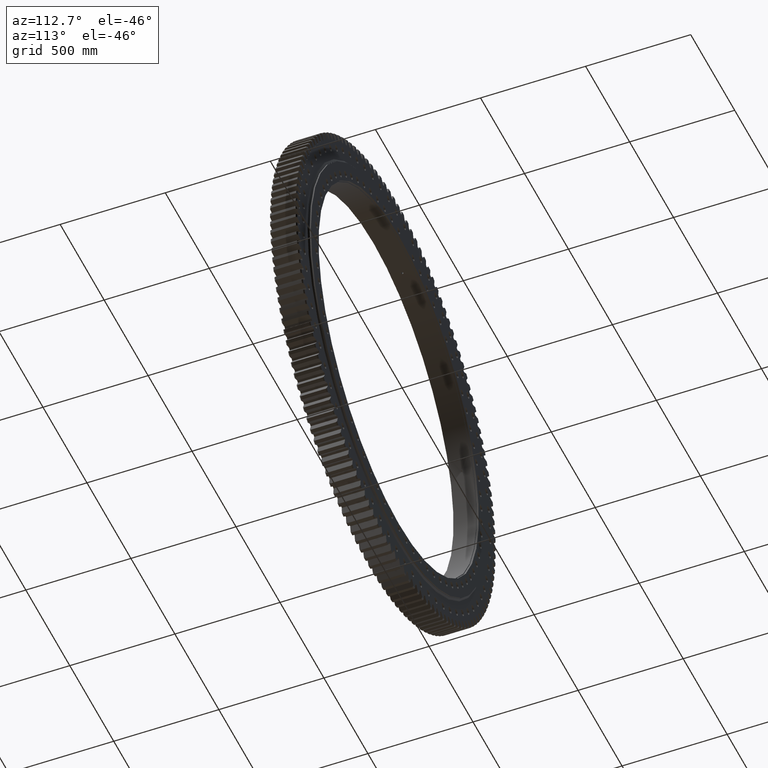
[diagram: clean part render]
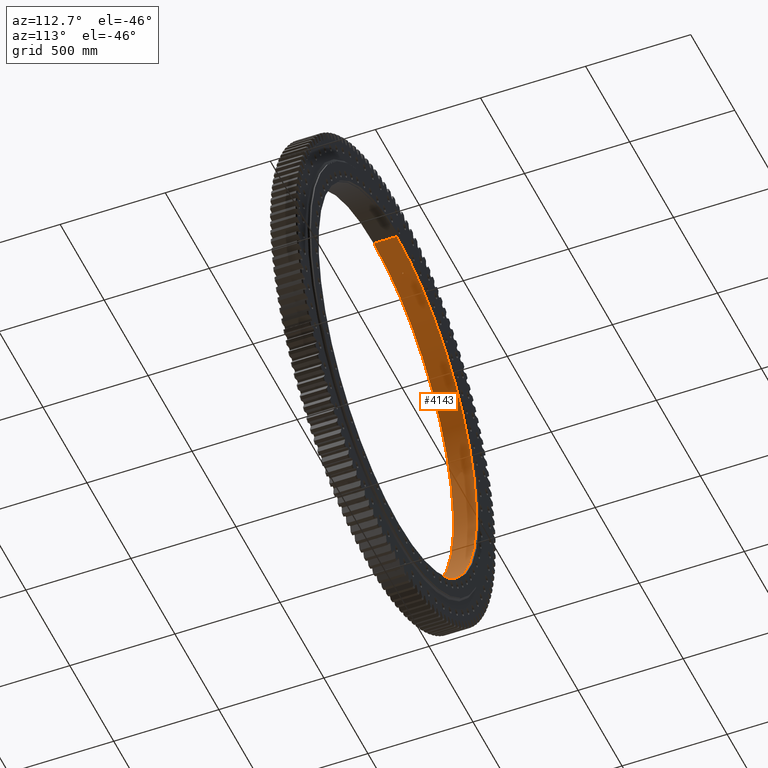
[diagram: same view with one face highlighted and labeled with its STEP entity id]
A machine part, auxiliary view. The second image highlights one B-rep face of the part: STEP entity #4143.
In plain terms, the highlighted cylindrical surface (partial cylindrical patch) has radius 907.5 mm, axis along (-0, 1, -0).
Its self-contained STEP definition (entity closure, byte-faithful):
#258 = CARTESIAN_POINT ( 'NONE',  ( -864.2734785840717700, 1.995678374227366500, 276.7446783161933600 ) ) ;
#410 = CARTESIAN_POINT ( 'NONE',  ( -865.6754169918129900, 4.470845106206327900, 272.3277541832980500 ) ) ;
#531 = CARTESIAN_POINT ( 'NONE',  ( -866.8319592276850500, 0.5919602825530790900, 268.6235428411367300 ) ) ;
#811 = VERTEX_POINT ( 'NONE', #25375 ) ;
#1352 = CARTESIAN_POINT ( 'NONE',  ( -865.8486069106239700, -4.355729318804272900, 271.7766042606155600 ) ) ;
#1507 = CARTESIAN_POINT ( 'NONE',  ( -864.3165584676373800, -2.259570858818501700, 276.6101295992097000 ) ) ;
#1709 = CARTESIAN_POINT ( 'NONE',  ( -667.2211728100832000, -3.577391815854718400, -615.1196765090354600 ) ) ;
#1875 = CARTESIAN_POINT ( 'NONE',  ( -670.9272961274457400, -3.581694275460563400, -611.0751779239489000 ) ) ;
#1935 = CARTESIAN_POINT ( 'NONE',  ( -669.8677852824914700, 4.355843325294878300, -612.2364613555328100 ) ) ;
#2067 = CARTESIAN_POINT ( 'NONE',  ( -666.4356440712842900, 2.257522974567048600, -615.9706233794394200 ) ) ;
#2581 = DIRECTION ( 'NONE',  ( 0.0000000000000000000, 3.058465632576188900E-017, 1.000000000000000000 ) ) ;
#2594 = EDGE_CURVE ( 'NONE', #28424, #13754, #41083, .T. ) ;
#2647 = CARTESIAN_POINT ( 'NONE',  ( -192.6039225694630100, 2.254168072660466000, 886.8258034600597700 ) ) ;
#2791 = CARTESIAN_POINT ( 'NONE',  ( -197.5583267160432400, 4.355942463367350500, 885.7353108167384300 ) ) ;
#2849 = VERTEX_POINT ( 'NONE', #9501 ) ;
#2875 = CARTESIAN_POINT ( 'NONE',  ( -198.6211880363419500, -3.904567218162347000, 885.4975626943731900 ) ) ;
#2951 = CARTESIAN_POINT ( 'NONE',  ( -200.8098668438726400, 0.2936959049994092900, 885.0037555729048800 ) ) ;
#3035 = CARTESIAN_POINT ( 'NONE',  ( -193.5164858688940500, -3.391803603721277800, 886.6271273216397000 ) ) ;
#3622 = CARTESIAN_POINT ( 'NONE',  ( -864.4151390523039700, 2.743367053977619400, 276.3019074290120900 ) ) ;
#3747 = CARTESIAN_POINT ( 'NONE',  ( -865.9324091030330200, 4.270949597112233300, 271.5094603829407400 ) ) ;
#3905 = CARTESIAN_POINT ( 'NONE',  ( -866.8406681927066300, 1.386433358244330100E-008, 268.5954317690863000 ) ) ;
#4143 = ADVANCED_FACE ( 'NONE', ( #40877, #32046, #23231, #14367 ), #22178, .F. ) ;
#4404 = DIRECTION ( 'NONE',  ( -0.0000000000000000000, 1.000000000000000000, -2.727064569436389700E-017 ) ) ;
#4562 = CARTESIAN_POINT ( 'NONE',  ( -866.7981907084789600, -1.165408985735066700, 268.7324876008206600 ) ) ;
#4678 = B_SPLINE_CURVE_WITH_KNOTS ( 'NONE', 3,
 ( #21124, #17770, #24500, #4562, #27840, #7891, #31172, #11282, #34465, #14589, #37862, #17923, #41145, #21268, #1352, #24635, #4688, #28001, #8054, #31290, #11431, #34621, #14730, #37989, #18085, #41301, #21398, #1507, #24799, #4822, #28143, #8210, #31447, #11545 ),
 .UNSPECIFIED., .F., .F.,
 ( 4, 2, 2, 2, 2, 2, 2, 2, 2, 2, 2, 2, 2, 2, 2, 2, 4 ),
 ( 0.01406907935536804200, 0.01494819836389200300, 0.01582731737241596300, 0.01670643638093992400, 0.01758555538946388400, 0.01846467439798784400, 0.01934379340651180800, 0.02022291241503576900, 0.02110203142355972900, 0.02198115043208369300, 0.02286026944060765000, 0.02373938844913161400, 0.02461850745765557800, 0.02549762646617953500, 0.02637674547470349500, 0.02725586448322745600, 0.02813498349175141600 ),
 .UNSPECIFIED. ) ;
#4688 = CARTESIAN_POINT ( 'NONE',  ( -865.5884883435734300, -4.499748536801098100, 272.6039377440718000 ) ) ;
#4822 = CARTESIAN_POINT ( 'NONE',  ( -864.2051240645569100, -1.455744730754485500, 276.9580585255137600 ) ) ;
#5070 = CARTESIAN_POINT ( 'NONE',  ( -667.7277792492332100, -4.042877831916336500, -614.5697168110298200 ) ) ;
#5129 = CARTESIAN_POINT ( 'NONE',  ( -672.0146816525707400, 1.164864495614498700, -609.8791035205454100 ) ) ;
#5202 = CARTESIAN_POINT ( 'NONE',  ( -671.3631533650967600, -2.976676943403645700, -610.5962737434144900 ) ) ;
#5261 = CARTESIAN_POINT ( 'NONE',  ( -669.2785505157847900, 4.499895718877844800, -612.8805413502547000 ) ) ;
#5286 = CARTESIAN_POINT ( 'NONE',  ( -666.0308013488304400, 1.386433358244330000E-008, -616.4083238038197100 ) ) ;
#5404 = CARTESIAN_POINT ( 'NONE',  ( -666.1866700629417400, 1.449115541588749300, -616.2398748761227100 ) ) ;
#5784 = CARTESIAN_POINT ( 'NONE',  ( 0.0000000000000000000, -53.99999999999999300, 907.5000000000000000 ) ) ;
#5851 = CARTESIAN_POINT ( 'NONE',  ( -192.0232027797931900, 0.2973259736361845200, 886.9517120983480300 ) ) ;
#5853 = EDGE_LOOP ( 'NONE', ( #37192, #38823, #32607, #26496 ) ) ;
#6010 = CARTESIAN_POINT ( 'NONE',  ( -193.1088648814115600, 2.974980547349809400, 886.7159970471822100 ) ) ;
#6041 = CARTESIAN_POINT ( 'NONE',  ( 0.0000000000000000000, 54.99999999999984400, 907.5000000000000000 ) ) ;
#6057 = EDGE_CURVE ( 'NONE', #11412, #811, #10582, .T. ) ;
#6158 = CARTESIAN_POINT ( 'NONE',  ( -198.3638142757928300, 4.045567043084799000, 885.5552616287576500 ) ) ;
#6205 = CARTESIAN_POINT ( 'NONE',  ( 0.0000000000000000000, 31.02910628019324300, -1.692367527159823000E-015 ) ) ;
#6223 = CARTESIAN_POINT ( 'NONE',  ( -197.8381517342993200, -4.268830616815539400, 885.6728457622816700 ) ) ;
#6256 = EDGE_CURVE ( 'NONE', #2849, #32421, #13012, .T. ) ;
#6351 = CARTESIAN_POINT ( 'NONE',  ( -192.9282412334216900, -2.750357013386704400, 886.7553049025478900 ) ) ;
#6358 = VERTEX_POINT ( 'NONE', #29267 ) ;
#6684 = VERTEX_POINT ( 'NONE', #5784 ) ;
#6798 = CARTESIAN_POINT ( 'NONE',  ( -864.1343159971680700, 1.386432330204347200E-008, 277.1788843258202600 ) ) ;
#6942 = CARTESIAN_POINT ( 'NONE',  ( -864.5992777901328700, 3.390113919888742400, 275.7251928278340100 ) ) ;
#7095 = CARTESIAN_POINT ( 'NONE',  ( -866.1739181786325600, 3.904602537100663600, 270.7379783632496200 ) ) ;
#7440 = ORIENTED_EDGE ( 'NONE', *, *, #2594, .T. ) ;
#7625 = CARTESIAN_POINT ( 'NONE',  ( 0.0000000000000000000, 31.02910628019326800, 907.5000000000000000 ) ) ;
#7881 = ORIENTED_EDGE ( 'NONE', *, *, #19949, .T. ) ;
#7891 = CARTESIAN_POINT ( 'NONE',  ( -866.7061899633098400, -1.991443744958436300, 269.0290743311630900 ) ) ;
#8054 = CARTESIAN_POINT ( 'NONE',  ( -865.3216220035528700, -4.471227435655857000, 273.4498549042274900 ) ) ;
#8210 = CARTESIAN_POINT ( 'NONE',  ( -864.1432263243729000, -0.5914352569063737700, 277.1511100241926300 ) ) ;
#8284 = CARTESIAN_POINT ( 'NONE',  ( -666.0308013488302100, -0.2936295937033787100, -616.4083238038197100 ) ) ;
#8417 = CARTESIAN_POINT ( 'NONE',  ( -668.2897468992738400, -4.355729318804284500, -613.9585872856605400 ) ) ;
#8474 = CARTESIAN_POINT ( 'NONE',  ( -671.8046610760103500, 1.995678374227392900, -610.1104491128567100 ) ) ;
#8573 = CARTESIAN_POINT ( 'NONE',  ( -671.7096784108387100, -2.259570858818522600, -610.2150317449085200 ) ) ;
#8645 = CARTESIAN_POINT ( 'NONE',  ( -668.6804617742047900, 4.470845106206329700, -613.5330254549493200 ) ) ;
#8793 = CARTESIAN_POINT ( 'NONE',  ( -666.0507917688430600, 0.5919602825530673200, -616.3867260828453700 ) ) ;
#9005 = CARTESIAN_POINT ( 'NONE',  ( -200.8098668438725600, -0.2936295937033693800, 885.0037555729049900 ) ) ;
#9244 = CARTESIAN_POINT ( 'NONE',  ( -192.0232027797931700, 1.386434051139267900E-008, 886.9517120983478000 ) ) ;
#9379 = CARTESIAN_POINT ( 'NONE',  ( -193.7359960417734600, 3.576390744989192500, 886.5791980154890600 ) ) ;
#9447 = CARTESIAN_POINT ( 'NONE',  ( -200.8098668438726400, 1.386433358244330300E-008, 885.0037555729049900 ) ) ;
#9501 = CARTESIAN_POINT ( 'NONE',  ( -672.1111132173713300, 1.386431359647072300E-008, -609.7728277725285600 ) ) ;
#9519 = CARTESIAN_POINT ( 'NONE',  ( -199.0968323108256500, 3.578756317312437500, 885.3907390666222500 ) ) ;
#9598 = CARTESIAN_POINT ( 'NONE',  ( -196.9974198342532600, -4.470446199383379100, 885.8602312391873300 ) ) ;
#9770 = CARTESIAN_POINT ( 'NONE',  ( -192.4696080708693600, -1.997034175586938100, 886.8549557908011100 ) ) ;
#10353 = CARTESIAN_POINT ( 'NONE',  ( -864.8173460178118100, 3.905345695955496000, 275.0404852795210200 ) ) ;
#10469 = CARTESIAN_POINT ( 'NONE',  ( -866.3869464955407700, 3.392751207313594400, 270.0554629743027100 ) ) ;
#10582 = LINE ( 'NONE', #27132, #19388 ) ;
#11053 = AXIS2_PLACEMENT_3D ( 'NONE', #11532, #34766, #14876 ) ;
#11282 = CARTESIAN_POINT ( 'NONE',  ( -866.5672752901958800, -2.745436259880001300, 269.4762224735848100 ) ) ;
#11412 = VERTEX_POINT ( 'NONE', #26231 ) ;
#11431 = CARTESIAN_POINT ( 'NONE',  ( -865.0620460071008900, -4.271337888731385300, 274.2699054636244100 ) ) ;
#11532 = CARTESIAN_POINT ( 'NONE',  ( 0.0000000000000000000, 54.99999999999984400, -2.346069276769921500E-015 ) ) ;
#11545 = CARTESIAN_POINT ( 'NONE',  ( -864.1343159971680700, 1.386432330204347200E-008, 277.1788843258202600 ) ) ;
#11624 = CARTESIAN_POINT ( 'NONE',  ( -666.1282564387355500, -1.165408985735058500, -616.3030093075228700 ) ) ;
#11784 = CARTESIAN_POINT ( 'NONE',  ( -668.8761794298229700, -4.499748536801105200, -613.3196512568706600 ) ) ;
#11848 = CARTESIAN_POINT ( 'NONE',  ( -671.4920404737713400, 2.743367053977639800, -610.4545161206486900 ) ) ;
#11933 = CARTESIAN_POINT ( 'NONE',  ( -671.9552764981891600, -1.455744730754471500, -609.9445622578335800 ) ) ;
#11983 = CARTESIAN_POINT ( 'NONE',  ( -668.1002946109462100, 4.270949597112207600, -614.1647340520171400 ) ) ;
#12110 = CARTESIAN_POINT ( 'NONE',  ( -666.0308013488304400, 1.386433358244330000E-008, -616.4083238038197100 ) ) ;
#12705 = CARTESIAN_POINT ( 'NONE',  ( -194.4725202443608800, 4.045122941605312100, 886.4179387822086900 ) ) ;
#12796 = CARTESIAN_POINT ( 'NONE',  ( -200.5856543330528700, -1.449882427493605500, 885.0546072599028100 ) ) ;
#12867 = CARTESIAN_POINT ( 'NONE',  ( -199.7284914100546300, 2.972768528701726700, 885.2484531809109300 ) ) ;
#12946 = CARTESIAN_POINT ( 'NONE',  ( -196.1329898898473200, -4.500248244149612600, 886.0520234745563400 ) ) ;
#13012 = B_SPLINE_CURVE_WITH_KNOTS ( 'NONE', 3,
 ( #18345, #38280, #25061, #5129, #28440, #8474, #31724, #11848, #35053, #15148, #38440, #18512, #41732, #21852, #1935, #25206, #5261, #28582, #8645, #31857, #11983, #35218, #15303, #38563, #18655, #41895, #21989, #2067, #25370, #5404, #28705, #8793, #32022, #12110 ),
 .UNSPECIFIED., .F., .F.,
 ( 4, 2, 2, 2, 2, 2, 2, 2, 2, 2, 2, 2, 2, 2, 2, 2, 4 ),
 ( 3.123534920344073900E-017, 0.0008793174597105288800, 0.001758634919421026500, 0.002637952379131524200, 0.003517269838842021800, 0.004396587298552519900, 0.005275904758263017100, 0.006155222217973514400, 0.007034539677684012400, 0.007913857137394510500, 0.008793174597105008600, 0.009672492056815505000, 0.01055180951652600300, 0.01143112697623650100, 0.01231044443594699700, 0.01318976189565749600, 0.01406907935536799400 ),
 .UNSPECIFIED. ) ;
#13068 = CARTESIAN_POINT ( 'NONE',  ( -192.1655185107688100, -1.173647320705860000, 886.9208909961618000 ) ) ;
#13621 = AXIS2_PLACEMENT_3D ( 'NONE', #6205, #29634, #36310 ) ;
#13654 = CARTESIAN_POINT ( 'NONE',  ( -865.0605473886655500, 4.269502541424997400, 274.2746300274869200 ) ) ;
#13754 = VERTEX_POINT ( 'NONE', #19554 ) ;
#13814 = CARTESIAN_POINT ( 'NONE',  ( -866.5673074240694400, 2.744954435737200000, 269.4761181607020700 ) ) ;
#13981 = ORIENTED_EDGE ( 'NONE', *, *, #19265, .T. ) ;
#14367 = FACE_OUTER_BOUND ( 'NONE', #5853, .T. ) ;
#14589 = CARTESIAN_POINT ( 'NONE',  ( -866.3886807443398100, -3.387315498573261000, 270.0498969579255700 ) ) ;
#14730 = CARTESIAN_POINT ( 'NONE',  ( -864.8185822591819900, -3.907537596810111600, 275.0365967337610900 ) ) ;
#14876 = DIRECTION ( 'NONE',  ( 0.0000000000000000000, 0.0000000000000000000, 1.000000000000000000 ) ) ;
#14971 = CARTESIAN_POINT ( 'NONE',  ( -666.3391077090527700, -1.991443744958415000, -616.0750409598680300 ) ) ;
#15100 = CARTESIAN_POINT ( 'NONE',  ( -669.4753320100048800, -4.471227435655848100, -612.6655796469200400 ) ) ;
#15148 = CARTESIAN_POINT ( 'NONE',  ( -671.0846603473322600, 3.390113919888734900, -610.9023422460182900 ) ) ;
#15237 = CARTESIAN_POINT ( 'NONE',  ( -672.0915151301917400, -0.5914352569063650000, -609.7944314930578000 ) ) ;
#15303 = CARTESIAN_POINT ( 'NONE',  ( -667.5529261211308900, 3.904602537100671600, -614.7596280565766200 ) ) ;
#15636 = ORIENTED_EDGE ( 'NONE', *, *, #6256, .T. ) ;
#16057 = CARTESIAN_POINT ( 'NONE',  ( -195.2784360157311000, 4.355843325294859600, 886.2407499092248600 ) ) ;
#16125 = CARTESIAN_POINT ( 'NONE',  ( -200.2314202219790800, -2.252548628519174500, 885.1348233113399100 ) ) ;
#16183 = CARTESIAN_POINT ( 'NONE',  ( -200.2283857958849500, 2.257522974567089100, 885.1355094428968200 ) ) ;
#16247 = CARTESIAN_POINT ( 'NONE',  ( -195.2848078206227500, -4.357379624262332400, 886.2393449223888000 ) ) ;
#16403 = CARTESIAN_POINT ( 'NONE',  ( -192.0232027797931900, -0.2972588430780971300, 886.9517120983478000 ) ) ;
#16824 = CARTESIAN_POINT ( 'NONE',  ( -864.1432292178490100, 0.5896827707127934000, 277.1511007818264100 ) ) ;
#16983 = CARTESIAN_POINT ( 'NONE',  ( -865.3214486072060900, 4.471354371842090300, 273.4504067518308300 ) ) ;
#17125 = CARTESIAN_POINT ( 'NONE',  ( -866.7057819262584000, 1.994552828251685300, 269.0303892360181500 ) ) ;
#17514 = ORIENTED_EDGE ( 'NONE', *, *, #28522, .T. ) ;
#17550 = VERTEX_POINT ( 'NONE', #6041 ) ;
#17770 = CARTESIAN_POINT ( 'NONE',  ( -866.8406681927066300, -0.2936295937033722700, 268.5954317690863000 ) ) ;
#17923 = CARTESIAN_POINT ( 'NONE',  ( -866.1739783007024000, -3.904567218162348300, 270.7377867778664600 ) ) ;
#18085 = CARTESIAN_POINT ( 'NONE',  ( -864.5998588794077500, -3.391803603721294600, 275.7233708472632500 ) ) ;
#18286 = CARTESIAN_POINT ( 'NONE',  ( -666.6568920230879500, -2.745436259880005300, -615.7311632527820400 ) ) ;
#18345 = CARTESIAN_POINT ( 'NONE',  ( -672.1111132173713300, 1.386431359647072300E-008, -609.7728277725285600 ) ) ;
#18438 = CARTESIAN_POINT ( 'NONE',  ( -670.0557286286040200, -4.271337888731388000, -612.0307549600814800 ) ) ;
#18512 = CARTESIAN_POINT ( 'NONE',  ( -670.6007203301694500, 3.905345695955532400, -611.4335486451029700 ) ) ;
#18599 = CARTESIAN_POINT ( 'NONE',  ( -672.1111132173713300, 1.386431359647072300E-008, -609.7728277725285600 ) ) ;
#18655 = CARTESIAN_POINT ( 'NONE',  ( -667.0683646142829300, 3.392751207313585000, -615.2853736852176800 ) ) ;
#19228 = CARTESIAN_POINT ( 'NONE',  ( -192.1634560597819900, 1.164864495614460900, 886.9213377875123600 ) ) ;
#19265 = EDGE_CURVE ( 'NONE', #27677, #6358, #36414, .T. ) ;
#19289 = CARTESIAN_POINT ( 'NONE',  ( -200.7821091180486800, -0.5854521619952167700, 885.0100552907443900 ) ) ;
#19358 = CARTESIAN_POINT ( 'NONE',  ( -196.1308430365832300, 4.499895718877850100, 886.0524976298248700 ) ) ;
#19388 = VECTOR ( 'NONE', #33766, 1000.000000000000000 ) ;
#19439 = CARTESIAN_POINT ( 'NONE',  ( -199.7287036448208000, -2.972153781786549300, 885.2484046352544700 ) ) ;
#19515 = CARTESIAN_POINT ( 'NONE',  ( -200.5860514361911000, 1.449115541588768700, 885.0545173751321500 ) ) ;
#19532 = EDGE_LOOP ( 'NONE', ( #38999, #7440 ) ) ;
#19554 = CARTESIAN_POINT ( 'NONE',  ( -192.0232027797931700, 1.386434051139267900E-008, 886.9517120983478000 ) ) ;
#19599 = CARTESIAN_POINT ( 'NONE',  ( -194.4731941677067100, -4.045624644837626100, 886.4177915831934300 ) ) ;
#19827 = B_SPLINE_CURVE_WITH_KNOTS ( 'NONE', 3,
 ( #9244, #5851, #39140, #19228, #42506, #22602, #2647, #25976, #6010, #29278, #9379, #32606, #12705, #35964, #16057, #39310, #19358, #42648, #22745, #2791, #26099, #6158, #29433, #9519, #32745, #12867, #36102, #16183, #39475, #19515, #42773, #22887, #2951, #26245 ),
 .UNSPECIFIED., .F., .F.,
 ( 4, 2, 2, 2, 2, 2, 2, 2, 2, 2, 2, 2, 2, 2, 2, 2, 4 ),
 ( 7.269209235040753900E-018, 0.0008793174597105099000, 0.001758634919421012700, 0.002637952379131514200, 0.003517269838842016200, 0.004396587298552517300, 0.005275904758263019700, 0.006155222217973520400, 0.007034539677684022900, 0.007913857137394524400, 0.008793174597105027700, 0.009672492056815531000, 0.01055180951652603300, 0.01143112697623653600, 0.01231044443594703700, 0.01318976189565754200, 0.01406907935536804200 ),
 .UNSPECIFIED. ) ;
#19949 = EDGE_CURVE ( 'NONE', #6358, #27677, #4678, .T. ) ;
#20199 = CARTESIAN_POINT ( 'NONE',  ( -864.2045563682537500, 1.450668166330363600, 276.9598301423787900 ) ) ;
#20325 = CARTESIAN_POINT ( 'NONE',  ( -865.5859129809924800, 4.500103743723854200, 272.6121116075969400 ) ) ;
#20458 = CARTESIAN_POINT ( 'NONE',  ( -866.7979077964676000, 1.168558873226576600, 268.7334001323573000 ) ) ;
#21124 = CARTESIAN_POINT ( 'NONE',  ( -866.8406681927066300, 1.386433358244330100E-008, 268.5954317690863000 ) ) ;
#21268 = CARTESIAN_POINT ( 'NONE',  ( -865.9342597393431300, -4.268830616815547400, 271.5035576414750800 ) ) ;
#21398 = CARTESIAN_POINT ( 'NONE',  ( -864.4167416029336000, -2.750357013386704400, 276.2968944356763400 ) ) ;
#21656 = CARTESIAN_POINT ( 'NONE',  ( -667.0644114271020700, -3.387315498573281800, -615.2896585969230000 ) ) ;
#21806 = CARTESIAN_POINT ( 'NONE',  ( -670.5979708714429500, -3.907537596810142200, -611.4365635344150900 ) ) ;
#21852 = CARTESIAN_POINT ( 'NONE',  ( -670.0590709117130900, 4.269502541425033800, -612.0270948365148300 ) ) ;
#21989 = CARTESIAN_POINT ( 'NONE',  ( -666.6568177524183100, 2.744954435737164000, -615.7312432379740100 ) ) ;
#22178 = CYLINDRICAL_SURFACE ( 'NONE', #13621, 907.5000000000000000 ) ;
#22520 = DIRECTION ( 'NONE',  ( -0.0000000000000000000, 1.000000000000000000, -2.727064569436389700E-017 ) ) ;
#22602 = CARTESIAN_POINT ( 'NONE',  ( -192.4688175080576100, 1.995678374227341200, 886.8551274290493900 ) ) ;
#22685 = VECTOR ( 'NONE', #4404, 1000.000000000000000 ) ;
#22745 = CARTESIAN_POINT ( 'NONE',  ( -196.9949552176041200, 4.470845106206329700, 885.8607796382465300 ) ) ;
#22830 = CARTESIAN_POINT ( 'NONE',  ( -199.0986798194447500, -3.577391815854701600, 885.3903238508975200 ) ) ;
#22887 = CARTESIAN_POINT ( 'NONE',  ( -200.7811674588385200, 0.5919602825530710900, 885.0102689239807900 ) ) ;
#22950 = CARTESIAN_POINT ( 'NONE',  ( -193.7429796405083400, -3.581694275460516800, 886.5776715007480100 ) ) ;
#23231 = FACE_BOUND ( 'NONE', #19532, .T. ) ;
#23269 = EDGE_CURVE ( 'NONE', #11412, #6684, #38926, .T. ) ;
#23545 = CARTESIAN_POINT ( 'NONE',  ( -864.3156358126897200, 2.254168072660470000, 276.6130119163418000 ) ) ;
#23696 = CARTESIAN_POINT ( 'NONE',  ( -865.8484435542234200, 4.355942463367348700, 271.7771257431277800 ) ) ;
#23705 = CARTESIAN_POINT ( 'NONE',  ( -200.8098668438726400, 1.386433358244330300E-008, 885.0037555729049900 ) ) ;
#23853 = CARTESIAN_POINT ( 'NONE',  ( -866.8406681927067400, 0.2936959049994042300, 268.5954317690863000 ) ) ;
#24500 = CARTESIAN_POINT ( 'NONE',  ( -866.8322450454799100, -0.5854521619952163200, 268.6226205237206800 ) ) ;
#24635 = CARTESIAN_POINT ( 'NONE',  ( -865.6761743726208400, -4.470446199383379100, 272.3253455631397600 ) ) ;
#24799 = CARTESIAN_POINT ( 'NONE',  ( -864.2737252223940900, -1.997034175586939000, 276.7439078495912700 ) ) ;
#25003 = CARTESIAN_POINT ( 'NONE',  ( -667.5527902643568700, -3.904567218162361200, -614.7597759165075800 ) ) ;
#25061 = CARTESIAN_POINT ( 'NONE',  ( -672.0915085728063300, 0.5896827707128223800, -609.7944386200649700 ) ) ;
#25140 = CARTESIAN_POINT ( 'NONE',  ( -671.0833730105101700, -3.391803603721294200, -610.9037564743779300 ) ) ;
#25206 = CARTESIAN_POINT ( 'NONE',  ( -669.4757232258746200, 4.471354371842105400, -612.6651535574770800 ) ) ;
#25370 = CARTESIAN_POINT ( 'NONE',  ( -666.3400424315349300, 1.994552828251678700, -616.0740301369879700 ) ) ;
#25375 = CARTESIAN_POINT ( 'NONE',  ( 1.111366970226223000E-013, 54.99999999999984400, -907.5000000000000000 ) ) ;
#25515 = CARTESIAN_POINT ( 'NONE',  ( -864.1343159971680700, 1.386432330204347200E-008, 277.1788843258202600 ) ) ;
#25834 = EDGE_CURVE ( 'NONE', #6684, #17550, #31491, .T. ) ;
#25976 = CARTESIAN_POINT ( 'NONE',  ( -192.9230985785289900, 2.743367053977614500, 886.7564235496594200 ) ) ;
#26099 = CARTESIAN_POINT ( 'NONE',  ( -197.8321144920830600, 4.270949597112218200, 885.6741944349568000 ) ) ;
#26171 = CARTESIAN_POINT ( 'NONE',  ( -198.3690975303395000, -4.042877831916318800, 885.5540780479194600 ) ) ;
#26231 = CARTESIAN_POINT ( 'NONE',  ( 1.111366970226223000E-013, -54.00000000000005000, -907.5000000000000000 ) ) ;
#26245 = CARTESIAN_POINT ( 'NONE',  ( -200.8098668438726400, 1.386433358244330300E-008, 885.0037555729049900 ) ) ;
#26330 = CARTESIAN_POINT ( 'NONE',  ( -193.1103078353615700, -2.976676943403624900, 886.7156828507102100 ) ) ;
#26496 = ORIENTED_EDGE ( 'NONE', *, *, #25834, .F. ) ;
#26916 = CARTESIAN_POINT ( 'NONE',  ( -864.4730118256134100, 2.974980547349820100, 276.1208158403099400 ) ) ;
#27061 = CARTESIAN_POINT ( 'NONE',  ( -866.0952601633756600, 4.045567043084823800, 270.9895284599617800 ) ) ;
#27132 = CARTESIAN_POINT ( 'NONE',  ( 1.111366970226223000E-013, 31.02910628019321800, -907.5000000000000000 ) ) ;
#27677 = VERTEX_POINT ( 'NONE', #25515 ) ;
#27840 = CARTESIAN_POINT ( 'NONE',  ( -866.7726007900619200, -1.449882427493606000, 268.8150313428013200 ) ) ;
#28001 = CARTESIAN_POINT ( 'NONE',  ( -865.4100563484955700, -4.500248244149612600, 273.1698599724717300 ) ) ;
#28143 = CARTESIAN_POINT ( 'NONE',  ( -864.1787820051902100, -1.173647320705867100, 277.0402247363443300 ) ) ;
#28370 = CARTESIAN_POINT ( 'NONE',  ( -668.0961080050403800, -4.268830616815548300, -614.1692881208077800 ) ) ;
#28424 = VERTEX_POINT ( 'NONE', #23705 ) ;
#28428 = B_SPLINE_CURVE_WITH_KNOTS ( 'NONE', 3,
 ( #31373, #8284, #31533, #11624, #34843, #14971, #38217, #18286, #41537, #21656, #1709, #25003, #5070, #28370, #8417, #31678, #11784, #34983, #15100, #38378, #18438, #41670, #21806, #1875, #25140, #5202, #28524, #8573, #31798, #11933, #35158, #15237, #38507, #18599 ),
 .UNSPECIFIED., .F., .F.,
 ( 4, 2, 2, 2, 2, 2, 2, 2, 2, 2, 2, 2, 2, 2, 2, 2, 4 ),
 ( 0.01406907935536799400, 0.01494819836389195100, 0.01582731737241590800, 0.01670643638093986100, 0.01758555538946381800, 0.01846467439798777500, 0.01934379340651173200, 0.02022291241503568600, 0.02110203142355964200, 0.02198115043208359900, 0.02286026944060755300, 0.02373938844913151300, 0.02461850745765547000, 0.02549762646617942400, 0.02637674547470338100, 0.02725586448322733800, 0.02813498349175129500 ),
 .UNSPECIFIED. ) ;
#28440 = CARTESIAN_POINT ( 'NONE',  ( -671.9565269152483300, 1.450668166330392200, -609.9431848099807200 ) ) ;
#28522 = EDGE_CURVE ( 'NONE', #32421, #2849, #28428, .T. ) ;
#28524 = CARTESIAN_POINT ( 'NONE',  ( -671.4885003695084200, -2.750357013386721700, -610.4584104668728100 ) ) ;
#28582 = CARTESIAN_POINT ( 'NONE',  ( -668.8819705219924600, 4.500103743723856900, -613.3133339956891600 ) ) ;
#28705 = CARTESIAN_POINT ( 'NONE',  ( -666.1289052582222900, 1.168558873226573300, -616.3023080327653800 ) ) ;
#29267 = CARTESIAN_POINT ( 'NONE',  ( -866.8406681927066300, 1.386433358244330100E-008, 268.5954317690863000 ) ) ;
#29278 = CARTESIAN_POINT ( 'NONE',  ( -193.5146174427971500, 3.390113919888731300, 886.6275350738516200 ) ) ;
#29433 = CARTESIAN_POINT ( 'NONE',  ( -198.6209920574984300, 3.904602537100653900, 885.4976064198253900 ) ) ;
#29520 = CARTESIAN_POINT ( 'NONE',  ( -197.5588600113465800, -4.355729318804279200, 885.7351915462750200 ) ) ;
#29634 = DIRECTION ( 'NONE',  ( -0.0000000000000000000, 1.000000000000000000, -2.727064569436389700E-017 ) ) ;
#29652 = CARTESIAN_POINT ( 'NONE',  ( -192.6068800567949200, -2.259570858818500800, 886.8251613441171900 ) ) ;
#30088 = CARTESIAN_POINT ( 'NONE',  ( -864.1343159971679600, 0.2973259736361826300, 277.1788843258202600 ) ) ;
#30210 = CARTESIAN_POINT ( 'NONE',  ( -864.6681059691350100, 3.576390744989192100, 275.5093048080852300 ) ) ;
#30346 = CARTESIAN_POINT ( 'NONE',  ( -866.3192884625874500, 3.578756317312453500, 270.2724549391234600 ) ) ;
#31172 = CARTESIAN_POINT ( 'NONE',  ( -866.6649528728609100, -2.252548628519178000, 269.1619151075968300 ) ) ;
#31290 = CARTESIAN_POINT ( 'NONE',  ( -865.1481904463803400, -4.357379624262324400, 273.9980679153711100 ) ) ;
#31373 = CARTESIAN_POINT ( 'NONE',  ( -666.0308013488304400, 1.386433358244330000E-008, -616.4083238038197100 ) ) ;
#31447 = CARTESIAN_POINT ( 'NONE',  ( -864.1343159971680700, -0.2972588430780944700, 277.1788843258201500 ) ) ;
#31491 = LINE ( 'NONE', #7625, #22685 ) ;
#31533 = CARTESIAN_POINT ( 'NONE',  ( -666.0501359274279600, -0.5854521619952166600, -616.3874347670245000 ) ) ;
#31678 = CARTESIAN_POINT ( 'NONE',  ( -668.6787545383637100, -4.470446199383383500, -613.5348856760483600 ) ) ;
#31724 = CARTESIAN_POINT ( 'NONE',  ( -671.7117132432230200, 2.254168072660490500, -610.2127915437190500 ) ) ;
#31798 = CARTESIAN_POINT ( 'NONE',  ( -671.8041171515213800, -1.997034175586927000, -610.1110479412109300 ) ) ;
#31857 = CARTESIAN_POINT ( 'NONE',  ( -668.2901168381766900, 4.355942463367346900, -613.9581850736118400 ) ) ;
#32022 = CARTESIAN_POINT ( 'NONE',  ( -666.0308013488305500, 0.2936959049994005700, -616.4083238038197100 ) ) ;
#32046 = FACE_BOUND ( 'NONE', #33571, .T. ) ;
#32421 = VERTEX_POINT ( 'NONE', #5286 ) ;
#32606 = CARTESIAN_POINT ( 'NONE',  ( -194.2166256876386400, 3.905345695955492000, 886.4740339246225200 ) ) ;
#32607 = ORIENTED_EDGE ( 'NONE', *, *, #43006, .F. ) ;
#32686 = CARTESIAN_POINT ( 'NONE',  ( -200.6699342697399700, -1.165408985735066200, 885.0354969083422200 ) ) ;
#32745 = CARTESIAN_POINT ( 'NONE',  ( -199.3185818812543200, 3.392751207313594800, 885.3408366595194800 ) ) ;
#32809 = CARTESIAN_POINT ( 'NONE',  ( -196.7123089137469100, -4.499748536801097200, 885.9235890009415500 ) ) ;
#32946 = CARTESIAN_POINT ( 'NONE',  ( -192.2498475663640000, -1.455744730754484200, 886.9026207833460400 ) ) ;
#33543 = CARTESIAN_POINT ( 'NONE',  ( -864.8967134778132500, 4.045122941605320900, 274.7908265215021400 ) ) ;
#33571 = EDGE_LOOP ( 'NONE', ( #13981, #7881 ) ) ;
#33696 = CARTESIAN_POINT ( 'NONE',  ( -866.5118948205768000, 2.972768528701727600, 269.6542791698040600 ) ) ;
#33766 = DIRECTION ( 'NONE',  ( -0.0000000000000000000, 1.000000000000000000, -2.727064569436389700E-017 ) ) ;
#34465 = CARTESIAN_POINT ( 'NONE',  ( -866.5119588961873700, -2.972153781786565800, 269.6540710962767100 ) ) ;
#34621 = CARTESIAN_POINT ( 'NONE',  ( -864.8969229613998100, -4.045624644837632300, 274.7901692872569600 ) ) ;
#34766 = DIRECTION ( 'NONE',  ( 0.0000000000000000000, -1.000000000000000000, 0.0000000000000000000 ) ) ;
#34843 = CARTESIAN_POINT ( 'NONE',  ( -666.1869464570056600, -1.449882427493584900, -616.2395759171025700 ) ) ;
#34983 = CARTESIAN_POINT ( 'NONE',  ( -669.2770664586449800, -4.500248244149608100, -612.8821635020852900 ) ) ;
#35053 = CARTESIAN_POINT ( 'NONE',  ( -671.3641469441981800, 2.974980547349813000, -610.5951812068731200 ) ) ;
#35158 = CARTESIAN_POINT ( 'NONE',  ( -672.0132634944179700, -1.173647320705862200, -609.8806662598186700 ) ) ;
#35218 = CARTESIAN_POINT ( 'NONE',  ( -667.7314458875795300, 4.045567043084777700, -614.5657331687965600 ) ) ;
#35964 = CARTESIAN_POINT ( 'NONE',  ( -195.0014764769488000, 4.269502541424996500, 886.3017248640005600 ) ) ;
#35995 = EDGE_CURVE ( 'NONE', #13754, #28424, #19827, .T. ) ;
#36035 = CARTESIAN_POINT ( 'NONE',  ( -200.3670822542536900, -1.991443744958436300, 885.1041152910298700 ) ) ;
#36102 = CARTESIAN_POINT ( 'NONE',  ( -199.9104896716474700, 2.744954435737200400, 885.2073613986749500 ) ) ;
#36178 = CARTESIAN_POINT ( 'NONE',  ( -195.8462899935444700, -4.471227435655860600, 886.1154345511463400 ) ) ;
#36310 = DIRECTION ( 'NONE',  ( 0.0000000000000000000, 2.676157428504165100E-017, 1.000000000000000000 ) ) ;
#36332 = CARTESIAN_POINT ( 'NONE',  ( -192.0517111941775000, -0.5914352569063672200, 886.9455415172495800 ) ) ;
#36414 = B_SPLINE_CURVE_WITH_KNOTS ( 'NONE', 3,
 ( #6798, #30088, #16824, #40107, #20199, #258, #23545, #3622, #26916, #6942, #30210, #10353, #33543, #13654, #36903, #16983, #40233, #20325, #410, #23696, #3747, #27061, #7095, #30346, #10469, #33696, #13814, #37035, #17125, #40398, #20458, #531, #23853, #3905 ),
 .UNSPECIFIED., .F., .F.,
 ( 4, 2, 2, 2, 2, 2, 2, 2, 2, 2, 2, 2, 2, 2, 2, 2, 4 ),
 ( 1.259401256057597900E-017, 0.0008793174597105142400, 0.001758634919421015900, 0.002637952379131518100, 0.003517269838842021000, 0.004396587298552524300, 0.005275904758263025800, 0.006155222217973528200, 0.007034539677684031500, 0.007913857137394531400, 0.008793174597105034600, 0.009672492056815536200, 0.01055180951652603600, 0.01143112697623653800, 0.01231044443594704100, 0.01318976189565754200, 0.01406907935536804200 ),
 .UNSPECIFIED. ) ;
#36903 = CARTESIAN_POINT ( 'NONE',  ( -865.1462212982263500, 4.355843325294857800, 274.0042885536931300 ) ) ;
#37035 = CARTESIAN_POINT ( 'NONE',  ( -866.6640298671725300, 2.257522974567089100, 269.1648860634586000 ) ) ;
#37192 = ORIENTED_EDGE ( 'NONE', *, *, #23269, .F. ) ;
#37862 = CARTESIAN_POINT ( 'NONE',  ( -866.3198526295316200, -3.577391815854698900, 270.2706473418634200 ) ) ;
#37989 = CARTESIAN_POINT ( 'NONE',  ( -864.6702757679574900, -3.581694275460527000, 275.5024935768004800 ) ) ;
#38217 = CARTESIAN_POINT ( 'NONE',  ( -666.4335326508781900, -2.252548628519174500, -615.9729082037441700 ) ) ;
#38280 = CARTESIAN_POINT ( 'NONE',  ( -672.1111132173714400, 0.2973259736361803000, -609.7728277725284400 ) ) ;
#38378 = CARTESIAN_POINT ( 'NONE',  ( -669.8633826257539600, -4.357379624262310200, -612.2412770070188800 ) ) ;
#38440 = CARTESIAN_POINT ( 'NONE',  ( -670.9321099273579400, 3.576390744989240000, -611.0698932074050200 ) ) ;
#38507 = CARTESIAN_POINT ( 'NONE',  ( -672.1111132173713300, -0.2972588430780919700, -609.7728277725285600 ) ) ;
#38542 = AXIS2_PLACEMENT_3D ( 'NONE', #42421, #22520, #2581 ) ;
#38563 = CARTESIAN_POINT ( 'NONE',  ( -667.2224561517582500, 3.578756317312463200, -615.1182841274998100 ) ) ;
#38823 = ORIENTED_EDGE ( 'NONE', *, *, #6057, .T. ) ;
#38926 = CIRCLE ( 'NONE', #38542, 907.5000000000000000 ) ;
#38999 = ORIENTED_EDGE ( 'NONE', *, *, #35995, .T. ) ;
#39140 = CARTESIAN_POINT ( 'NONE',  ( -192.0517206450395200, 0.5896827707127813000, 886.9455394018901900 ) ) ;
#39200 = CIRCLE ( 'NONE', #11053, 907.5000000000000000 ) ;
#39310 = CARTESIAN_POINT ( 'NONE',  ( -195.8457253813277000, 4.471354371842090300, 886.1155603093067200 ) ) ;
#39395 = CARTESIAN_POINT ( 'NONE',  ( -199.9103832671043800, -2.745436259879997700, 885.2073857263661700 ) ) ;
#39475 = CARTESIAN_POINT ( 'NONE',  ( -200.3657394947197800, 1.994552828251696000, 885.1044193730050400 ) ) ;
#39542 = CARTESIAN_POINT ( 'NONE',  ( -195.0063173784931200, -4.271337888731380000, 886.3006604237044700 ) ) ;
#39663 = CARTESIAN_POINT ( 'NONE',  ( -192.0232027797931700, 1.386434051139267900E-008, 886.9517120983478000 ) ) ;
#40107 = CARTESIAN_POINT ( 'NONE',  ( -864.1781377123563700, 1.164864495614473800, 277.0422342669682500 ) ) ;
#40233 = CARTESIAN_POINT ( 'NONE',  ( -865.4093935523714000, 4.499895718877848300, 273.1719562795709100 ) ) ;
#40398 = CARTESIAN_POINT ( 'NONE',  ( -866.7727214991360800, 1.449115541588761500, 268.8146424990104600 ) ) ;
#40877 = FACE_BOUND ( 'NONE', #42409, .T. ) ;
#41083 = B_SPLINE_CURVE_WITH_KNOTS ( 'NONE', 3,
 ( #9447, #9005, #19289, #32686, #12796, #36035, #16125, #39395, #19439, #42712, #22830, #2875, #26171, #6223, #29520, #9598, #32809, #12946, #36178, #16247, #39542, #19599, #42855, #22950, #3035, #26330, #6351, #29652, #9770, #32946, #13068, #36332, #16403, #39663 ),
 .UNSPECIFIED., .F., .F.,
 ( 4, 2, 2, 2, 2, 2, 2, 2, 2, 2, 2, 2, 2, 2, 2, 2, 4 ),
 ( 0.01406907935536804200, 0.01494819836389200300, 0.01582731737241596300, 0.01670643638093992400, 0.01758555538946388400, 0.01846467439798784400, 0.01934379340651180800, 0.02022291241503576500, 0.02110203142355972900, 0.02198115043208368600, 0.02286026944060765000, 0.02373938844913160700, 0.02461850745765557100, 0.02549762646617953100, 0.02637674547470349200, 0.02725586448322745200, 0.02813498349175141300 ),
 .UNSPECIFIED. ) ;
#41145 = CARTESIAN_POINT ( 'NONE',  ( -866.0968767795760600, -4.042877831916326800, 270.9843612368907200 ) ) ;
#41301 = CARTESIAN_POINT ( 'NONE',  ( -864.4734612004621100, -2.976676943403646600, 276.1194091072967500 ) ) ;
#41537 = CARTESIAN_POINT ( 'NONE',  ( -666.7832552513629000, -2.972153781786589700, -615.5943335389789600 ) ) ;
#41670 = CARTESIAN_POINT ( 'NONE',  ( -670.4237287936894100, -4.045624644837640300, -611.6276222959376100 ) ) ;
#41732 = CARTESIAN_POINT ( 'NONE',  ( -670.4241932334487000, 4.045122941605361800, -611.6271122607075800 ) ) ;
#41895 = CARTESIAN_POINT ( 'NONE',  ( -666.7834034105179600, 2.972768528701721800, -615.5941740111081800 ) ) ;
#42409 = EDGE_LOOP ( 'NONE', ( #15636, #17514 ) ) ;
#42421 = CARTESIAN_POINT ( 'NONE',  ( 0.0000000000000000000, -54.00000000000002100, 6.264311039157393800E-016 ) ) ;
#42506 = CARTESIAN_POINT ( 'NONE',  ( -192.2480294530016100, 1.450668166330339600, 886.9030149523582600 ) ) ;
#42648 = CARTESIAN_POINT ( 'NONE',  ( -196.7039424589964700, 4.500103743723852500, 885.9254456032848600 ) ) ;
#42712 = CARTESIAN_POINT ( 'NONE',  ( -199.3242693172343500, -3.387315498573247200, 885.3395555548472700 ) ) ;
#42773 = CARTESIAN_POINT ( 'NONE',  ( -200.6690025382418400, 1.168558873226573300, 885.0357081651217200 ) ) ;
#42855 = CARTESIAN_POINT ( 'NONE',  ( -194.2206113877356300, -3.907537596810100500, 886.4731602681746400 ) ) ;
#43006 = EDGE_CURVE ( 'NONE', #17550, #811, #39200, .T. ) ;